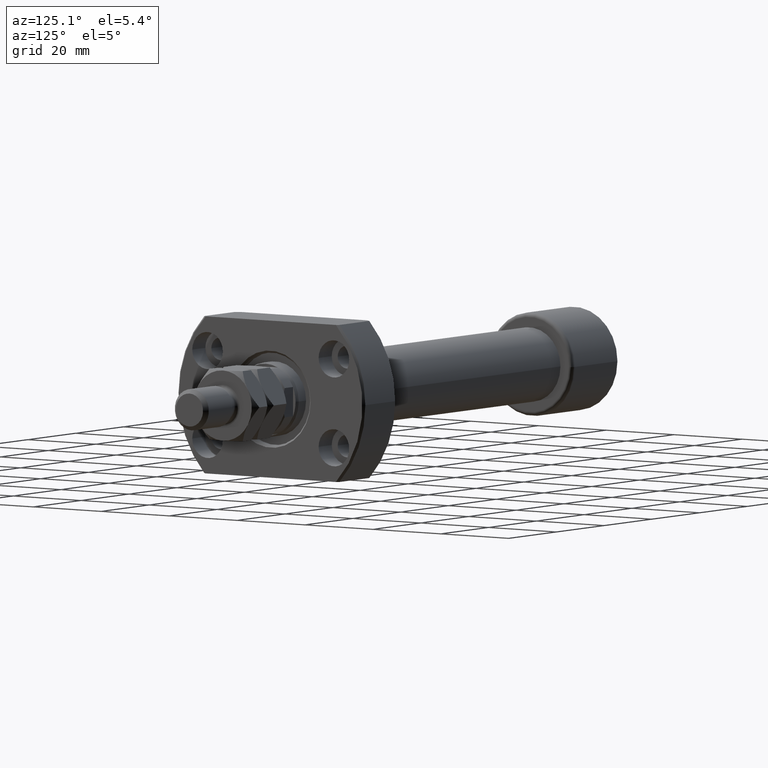
[diagram: clean part render]
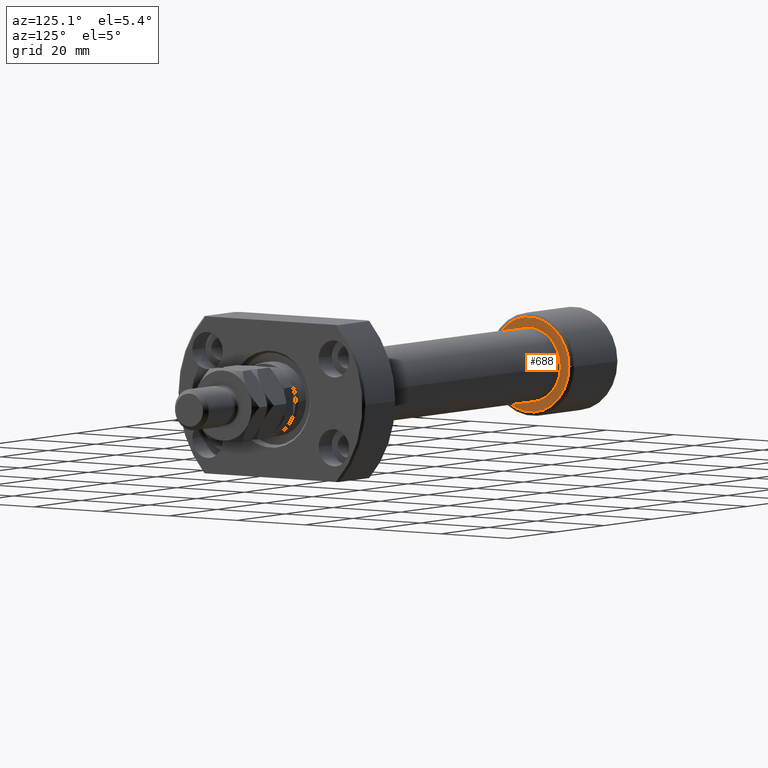
[diagram: same view with one face highlighted and labeled with its STEP entity id]
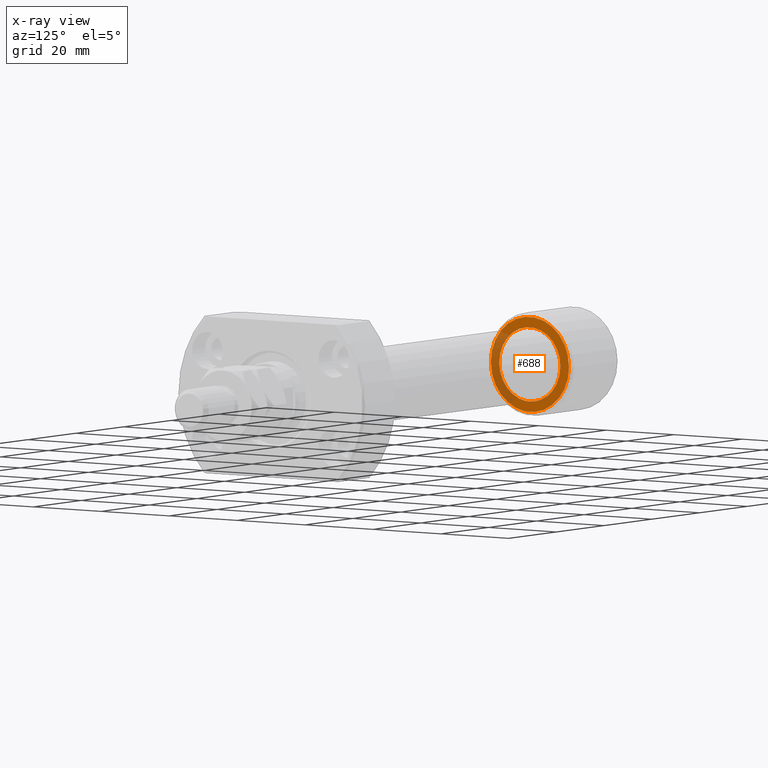
[diagram: x-ray of the same camera — body ghosted, the highlighted face saturated]
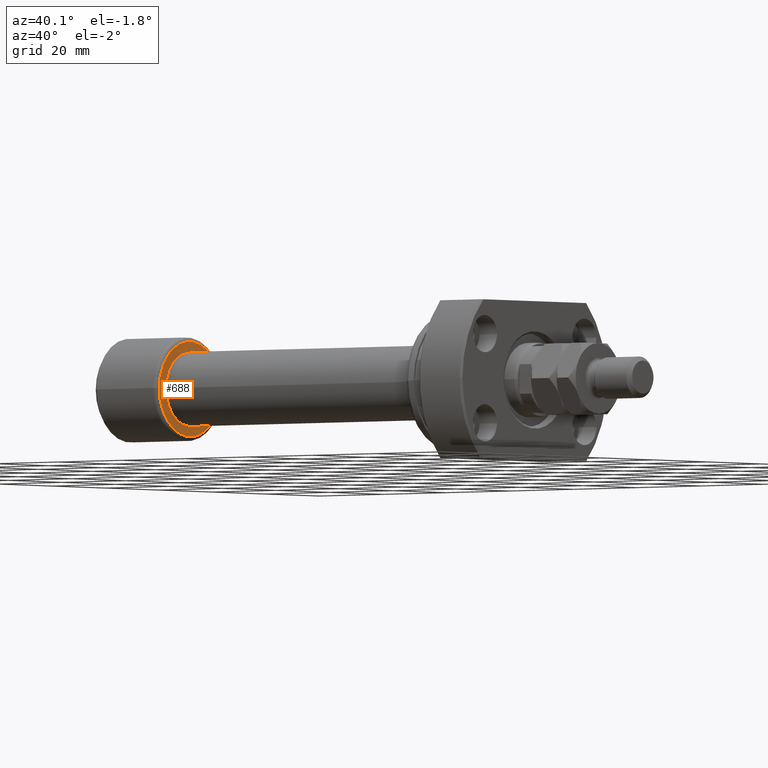
[diagram: same view with one face highlighted and labeled with its STEP entity id]
A machine part, auxiliary view. The second image highlights one B-rep face of the part: STEP entity #688.
The next image is the same camera in x-ray: the body ghosted, the highlighted face saturated — about 30% of this face is hidden behind the body in this view.
A second angle (auxiliary view) of the same face is appended — the face is thin or edge-on in the first view.
In plain terms, the highlighted planar face has unit normal (-1, -0, 0).
Its self-contained STEP definition (entity closure, byte-faithful):
#35 = DIRECTION ( 'NONE',  ( -1.000000000000000000, -1.069542322069065801E-17, -0.000000000000000000 ) ) ;
#62 = DIRECTION ( 'NONE',  ( -1.000000000000000000, -1.069542322069065801E-17, 0.000000000000000000 ) ) ;
#65 = ORIENTED_EDGE ( 'NONE', *, *, #1532, .T. ) ;
#198 = AXIS2_PLACEMENT_3D ( 'NONE', #305, #4338, #1435 ) ;
#305 = CARTESIAN_POINT ( 'NONE',  ( 20.39999999999999503, 2.181866337020893623E-16, 0.000000000000000000 ) ) ;
#410 = DIRECTION ( 'NONE',  ( -1.000000000000000000, -1.069542322069065801E-17, -0.000000000000000000 ) ) ;
#417 = CIRCLE ( 'NONE', #880, 9.000000000000000000 ) ;
#508 = DIRECTION ( 'NONE',  ( 0.000000000000000000, -1.000000000000000000, 0.000000000000000000 ) ) ;
#688 = ADVANCED_FACE ( 'NONE', ( #2435, #3409 ), #2777, .F. ) ;
#812 = AXIS2_PLACEMENT_3D ( 'NONE', #1630, #35, #3019 ) ;
#870 = DIRECTION ( 'NONE',  ( -1.000000000000000000, -1.069542322069065801E-17, -0.000000000000000000 ) ) ;
#880 = AXIS2_PLACEMENT_3D ( 'NONE', #3735, #410, #508 ) ;
#984 = VERTEX_POINT ( 'NONE', #1730 ) ;
#1049 = CIRCLE ( 'NONE', #812, 11.50000000000000000 ) ;
#1060 = ORIENTED_EDGE ( 'NONE', *, *, #2791, .F. ) ;
#1193 = CARTESIAN_POINT ( 'NONE',  ( 20.39999999999999503, 9.000000000000000000, 1.102182119232623630E-15 ) ) ;
#1435 = DIRECTION ( 'NONE',  ( 0.000000000000000000, -1.000000000000000000, 0.000000000000000000 ) ) ;
#1478 = VERTEX_POINT ( 'NONE', #1193 ) ;
#1532 = EDGE_CURVE ( 'NONE', #1478, #4650, #417, .T. ) ;
#1630 = CARTESIAN_POINT ( 'NONE',  ( 20.39999999999999503, 2.181866337020893623E-16, 0.000000000000000000 ) ) ;
#1730 = CARTESIAN_POINT ( 'NONE',  ( 20.39999999999999503, -11.50000000000000000, 0.000000000000000000 ) ) ;
#1839 = CIRCLE ( 'NONE', #2765, 9.000000000000000000 ) ;
#1925 = CARTESIAN_POINT ( 'NONE',  ( 20.39999999999999503, -9.000000000000000000, 0.000000000000000000 ) ) ;
#2435 = FACE_OUTER_BOUND ( 'NONE', #2782, .T. ) ;
#2765 = AXIS2_PLACEMENT_3D ( 'NONE', #4272, #870, #2810 ) ;
#2777 = PLANE ( 'NONE',  #3354 ) ;
#2782 = EDGE_LOOP ( 'NONE', ( #4311, #1060 ) ) ;
#2791 = EDGE_CURVE ( 'NONE', #4189, #984, #1049, .T. ) ;
#2810 = DIRECTION ( 'NONE',  ( 0.000000000000000000, -1.000000000000000000, 0.000000000000000000 ) ) ;
#3012 = EDGE_LOOP ( 'NONE', ( #4062, #65 ) ) ;
#3019 = DIRECTION ( 'NONE',  ( 0.000000000000000000, -1.000000000000000000, 0.000000000000000000 ) ) ;
#3103 = EDGE_CURVE ( 'NONE', #984, #4189, #3141, .T. ) ;
#3141 = CIRCLE ( 'NONE', #198, 11.50000000000000000 ) ;
#3354 = AXIS2_PLACEMENT_3D ( 'NONE', #1925, #62, #3894 ) ;
#3409 = FACE_BOUND ( 'NONE', #3012, .T. ) ;
#3565 = CARTESIAN_POINT ( 'NONE',  ( 20.39999999999999503, -9.000000000000000000, 0.000000000000000000 ) ) ;
#3735 = CARTESIAN_POINT ( 'NONE',  ( 20.39999999999999503, 2.181866337020893623E-16, 0.000000000000000000 ) ) ;
#3844 = CARTESIAN_POINT ( 'NONE',  ( 20.39999999999999503, 11.50000000000000000, 1.469576158976823947E-15 ) ) ;
#3894 = DIRECTION ( 'NONE',  ( 1.069542322069065801E-17, -1.000000000000000000, 0.000000000000000000 ) ) ;
#3904 = EDGE_CURVE ( 'NONE', #4650, #1478, #1839, .T. ) ;
#4062 = ORIENTED_EDGE ( 'NONE', *, *, #3904, .T. ) ;
#4189 = VERTEX_POINT ( 'NONE', #3844 ) ;
#4272 = CARTESIAN_POINT ( 'NONE',  ( 20.39999999999999503, 2.181866337020893623E-16, 0.000000000000000000 ) ) ;
#4311 = ORIENTED_EDGE ( 'NONE', *, *, #3103, .F. ) ;
#4338 = DIRECTION ( 'NONE',  ( -1.000000000000000000, -1.069542322069065801E-17, -0.000000000000000000 ) ) ;
#4650 = VERTEX_POINT ( 'NONE', #3565 ) ;